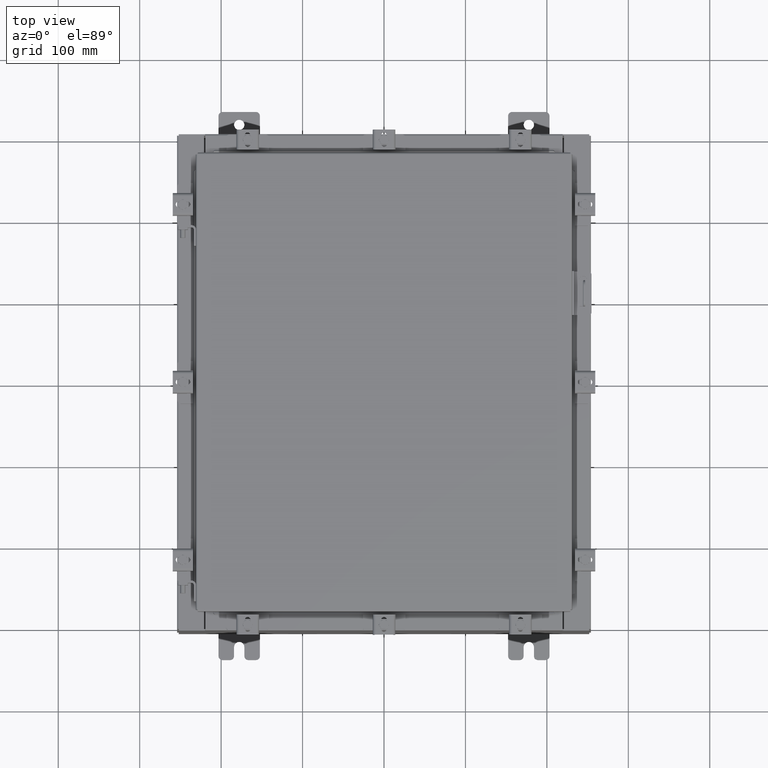
[diagram: clean part render]
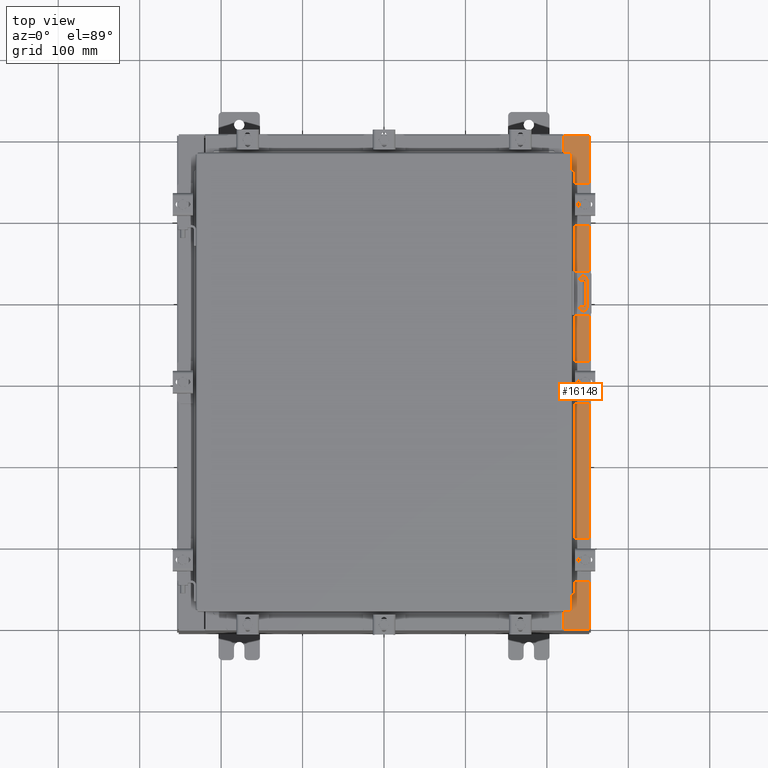
[diagram: same view with one face highlighted and labeled with its STEP entity id]
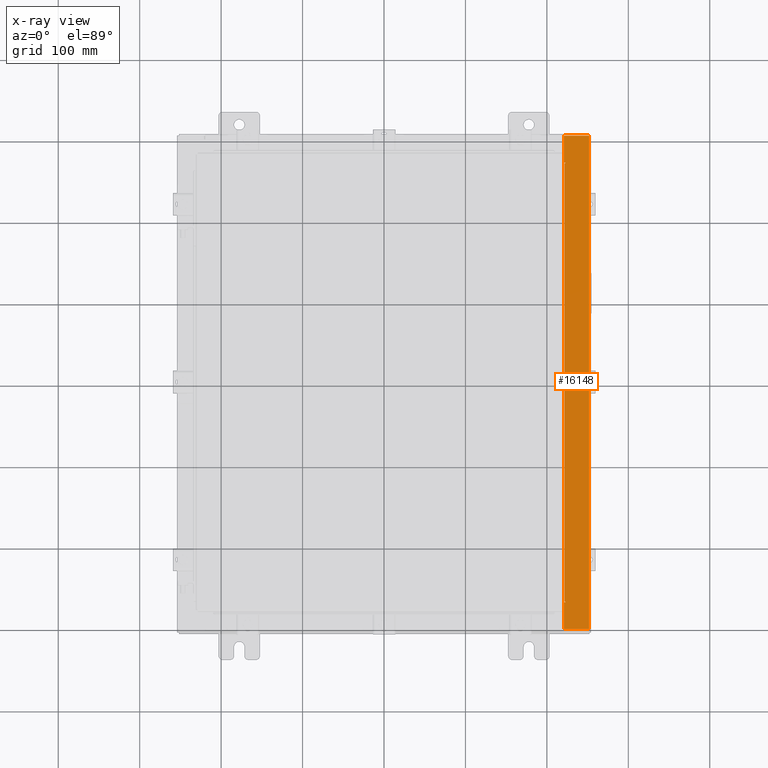
[diagram: x-ray of the same camera — body ghosted, the highlighted face saturated]
A machine part, top view. The second image highlights one B-rep face of the part: STEP entity #16148.
The next image is the same camera in x-ray: the body ghosted, the highlighted face saturated — about 0% of this face is hidden behind the body in this view.
In plain terms, the highlighted planar face has unit normal (-0, 0, -1).
Its self-contained STEP definition (entity closure, byte-faithful):
#91 = ORIENTED_EDGE ( 'NONE', *, *, #11133, .F. ) ;
#1032 = VERTEX_POINT ( 'NONE', #2040 ) ;
#1046 = VERTEX_POINT ( 'NONE', #1402 ) ;
#1148 = CARTESIAN_POINT ( 'NONE',  ( 8.712700000000035400, -10.59375000000000000, 9.925300000000007100 ) ) ;
#1402 = CARTESIAN_POINT ( 'NONE',  ( 8.750050000000037200, 10.63109999999999500, 9.925300000000008900 ) ) ;
#1434 = ORIENTED_EDGE ( 'NONE', *, *, #5772, .T. ) ;
#1917 = EDGE_CURVE ( 'NONE', #1046, #8275, #14359, .T. ) ;
#2040 = CARTESIAN_POINT ( 'NONE',  ( 8.750050000000037200, 10.59374999999999600, 9.925300000000008900 ) ) ;
#2088 = CARTESIAN_POINT ( 'NONE',  ( 8.712700000000035400, -10.59374999999999800, 9.925300000000007100 ) ) ;
#2165 = FACE_OUTER_BOUND ( 'NONE', #14986, .T. ) ;
#2242 = VECTOR ( 'NONE', #3839, 39.37007874015748100 ) ;
#2386 = CARTESIAN_POINT ( 'NONE',  ( 8.712700000000035400, 10.59374999999999600, 9.925300000000007100 ) ) ;
#2564 = VECTOR ( 'NONE', #11117, 39.37007874015748100 ) ;
#2630 = CARTESIAN_POINT ( 'NONE',  ( 8.750050000000037200, -10.59374999999999800, 9.925300000000008900 ) ) ;
#2643 = CIRCLE ( 'NONE', #14039, 0.01867499999999949400 ) ;
#2644 = DIRECTION ( 'NONE',  ( 1.000000000000000000, 0.0000000000000000000, 0.0000000000000000000 ) ) ;
#2800 = VERTEX_POINT ( 'NONE', #11036 ) ;
#2908 = CARTESIAN_POINT ( 'NONE',  ( 8.699700000000035500, 11.92529999999999600, 9.925300000000008900 ) ) ;
#3205 = EDGE_CURVE ( 'NONE', #1032, #1046, #2643, .T. ) ;
#3230 = VERTEX_POINT ( 'NONE', #2630 ) ;
#3464 = CARTESIAN_POINT ( 'NONE',  ( 8.750050000000037200, -10.63109999999999600, 9.925300000000008900 ) ) ;
#3478 = VECTOR ( 'NONE', #10805, 39.37007874015748100 ) ;
#3615 = AXIS2_PLACEMENT_3D ( 'NONE', #7583, #18792, #9235 ) ;
#3839 = DIRECTION ( 'NONE',  ( 1.000000000000000000, 1.633973368572597200E-031, -5.349571789159784600E-015 ) ) ;
#3865 = EDGE_CURVE ( 'NONE', #8806, #8275, #12471, .T. ) ;
#4075 = LINE ( 'NONE', #18718, #12174 ) ;
#4230 = ORIENTED_EDGE ( 'NONE', *, *, #1917, .F. ) ;
#4282 = EDGE_CURVE ( 'NONE', #10797, #8806, #17187, .T. ) ;
#4849 = DIRECTION ( 'NONE',  ( 1.000000000000000000, 0.0000000000000000000, 0.0000000000000000000 ) ) ;
#4941 = LINE ( 'NONE', #10382, #8240 ) ;
#5040 = VERTEX_POINT ( 'NONE', #13028 ) ;
#5195 = ORIENTED_EDGE ( 'NONE', *, *, #14273, .F. ) ;
#5370 = DIRECTION ( 'NONE',  ( 1.000000000000000000, 0.0000000000000000000, 0.0000000000000000000 ) ) ;
#5462 = DIRECTION ( 'NONE',  ( -1.000000000000000000, 0.0000000000000000000, 5.349571789159783800E-015 ) ) ;
#5656 = EDGE_CURVE ( 'NONE', #11680, #1032, #4075, .T. ) ;
#5772 = EDGE_CURVE ( 'NONE', #2800, #7759, #10663, .T. ) ;
#5819 = ORIENTED_EDGE ( 'NONE', *, *, #11796, .F. ) ;
#5898 = LINE ( 'NONE', #11373, #18683 ) ;
#6163 = DIRECTION ( 'NONE',  ( -6.427586101948161900E-031, -1.000000000000000000, 3.438483328337737900E-045 ) ) ;
#6419 = EDGE_CURVE ( 'NONE', #2800, #16064, #5898, .T. ) ;
#6508 = LINE ( 'NONE', #13646, #14518 ) ;
#6769 = DIRECTION ( 'NONE',  ( 5.349571789159783800E-015, 0.0000000000000000000, 1.000000000000000000 ) ) ;
#7041 = CARTESIAN_POINT ( 'NONE',  ( 8.750050000000037200, 10.61242499999999500, 9.925300000000007100 ) ) ;
#7149 = ORIENTED_EDGE ( 'NONE', *, *, #3865, .T. ) ;
#7583 = CARTESIAN_POINT ( 'NONE',  ( 8.750050000000037200, -10.61242499999999800, 9.925300000000007100 ) ) ;
#7693 = ORIENTED_EDGE ( 'NONE', *, *, #3205, .F. ) ;
#7759 = VERTEX_POINT ( 'NONE', #16010 ) ;
#8168 = VECTOR ( 'NONE', #10213, 39.37007874015748100 ) ;
#8240 = VECTOR ( 'NONE', #8745, 39.37007874015748100 ) ;
#8275 = VERTEX_POINT ( 'NONE', #11437 ) ;
#8646 = PLANE ( 'NONE',  #20392 ) ;
#8745 = DIRECTION ( 'NONE',  ( -0.0000000000000000000, -1.000000000000000000, -0.0000000000000000000 ) ) ;
#8806 = VERTEX_POINT ( 'NONE', #2908 ) ;
#9235 = DIRECTION ( 'NONE',  ( 1.000000000000000000, 0.0000000000000000000, 0.0000000000000000000 ) ) ;
#9319 = LINE ( 'NONE', #15071, #2242 ) ;
#9345 = DIRECTION ( 'NONE',  ( -1.000000000000000000, 8.758115402030108600E-047, 5.349571789159784600E-015 ) ) ;
#9429 = CARTESIAN_POINT ( 'NONE',  ( 8.699700000000035500, -5.591807081111829600E-030, 9.925300000000008900 ) ) ;
#9443 = CARTESIAN_POINT ( 'NONE',  ( 8.750050000000037200, 10.63109999999999500, 9.925300000000007100 ) ) ;
#10149 = VECTOR ( 'NONE', #6163, 39.37007874015748100 ) ;
#10192 = EDGE_CURVE ( 'NONE', #3230, #16117, #6508, .T. ) ;
#10213 = DIRECTION ( 'NONE',  ( -6.427586101948161900E-031, -1.000000000000000000, 3.438483328337737900E-045 ) ) ;
#10382 = CARTESIAN_POINT ( 'NONE',  ( 9.912300000000035600, -11.92530000000000000, 9.925300000000001800 ) ) ;
#10663 = LINE ( 'NONE', #9429, #10149 ) ;
#10797 = VERTEX_POINT ( 'NONE', #18985 ) ;
#10805 = DIRECTION ( 'NONE',  ( -0.0000000000000000000, 1.000000000000000000, -0.0000000000000000000 ) ) ;
#11036 = CARTESIAN_POINT ( 'NONE',  ( 8.699700000000035500, -10.63109999999999600, 9.925300000000008900 ) ) ;
#11117 = DIRECTION ( 'NONE',  ( -1.000000000000000000, 4.340572780399910900E-014, 0.0000000000000000000 ) ) ;
#11133 = EDGE_CURVE ( 'NONE', #10797, #5040, #4941, .T. ) ;
#11373 = CARTESIAN_POINT ( 'NONE',  ( 8.699700000000035500, -10.63109999999999600, 9.925300000000007100 ) ) ;
#11437 = CARTESIAN_POINT ( 'NONE',  ( 8.699700000000035500, 10.63109999999999600, 9.925300000000008900 ) ) ;
#11680 = VERTEX_POINT ( 'NONE', #2386 ) ;
#11796 = EDGE_CURVE ( 'NONE', #16064, #3230, #16997, .T. ) ;
#11896 = CARTESIAN_POINT ( 'NONE',  ( 5.335691853495948400E-014, 0.0000000000000000000, 9.925300000000055100 ) ) ;
#12174 = VECTOR ( 'NONE', #2644, 39.37007874015748100 ) ;
#12453 = VECTOR ( 'NONE', #9345, 39.37007874015748100 ) ;
#12471 = LINE ( 'NONE', #18223, #8168 ) ;
#12578 = CARTESIAN_POINT ( 'NONE',  ( 5.335691853495948400E-014, 11.92529999999999800, 9.925300000000055100 ) ) ;
#13028 = CARTESIAN_POINT ( 'NONE',  ( 9.912300000000035600, -11.92530000000000000, 9.925300000000001800 ) ) ;
#13646 = CARTESIAN_POINT ( 'NONE',  ( 8.750050000000037200, -10.59374999999999800, 9.925300000000007100 ) ) ;
#13808 = ORIENTED_EDGE ( 'NONE', *, *, #10192, .F. ) ;
#14039 = AXIS2_PLACEMENT_3D ( 'NONE', #7041, #6769, #5370 ) ;
#14273 = EDGE_CURVE ( 'NONE', #16117, #11680, #15310, .T. ) ;
#14359 = LINE ( 'NONE', #9443, #2564 ) ;
#14518 = VECTOR ( 'NONE', #18404, 39.37007874015748100 ) ;
#14615 = EDGE_CURVE ( 'NONE', #7759, #5040, #9319, .T. ) ;
#14986 = EDGE_LOOP ( 'NONE', ( #16378, #1434, #19355, #91, #15238, #7149, #4230, #7693, #20302, #5195, #13808, #5819 ) ) ;
#15060 = DIRECTION ( 'NONE',  ( -5.349571789159783800E-015, 0.0000000000000000000, -1.000000000000000000 ) ) ;
#15071 = CARTESIAN_POINT ( 'NONE',  ( 5.335691853495948400E-014, -11.92530000000000000, 9.925300000000055100 ) ) ;
#15238 = ORIENTED_EDGE ( 'NONE', *, *, #4282, .T. ) ;
#15310 = LINE ( 'NONE', #1148, #3478 ) ;
#16010 = CARTESIAN_POINT ( 'NONE',  ( 8.699700000000035500, -11.92530000000000000, 9.925300000000008900 ) ) ;
#16064 = VERTEX_POINT ( 'NONE', #3464 ) ;
#16117 = VERTEX_POINT ( 'NONE', #2088 ) ;
#16148 = ADVANCED_FACE ( 'NONE', ( #2165 ), #8646, .F. ) ;
#16378 = ORIENTED_EDGE ( 'NONE', *, *, #6419, .F. ) ;
#16997 = CIRCLE ( 'NONE', #3615, 0.01867499999999949400 ) ;
#17187 = LINE ( 'NONE', #12578, #12453 ) ;
#18223 = CARTESIAN_POINT ( 'NONE',  ( 8.699700000000035500, -5.591807081111829600E-030, 9.925300000000008900 ) ) ;
#18404 = DIRECTION ( 'NONE',  ( -1.000000000000000000, 0.0000000000000000000, 0.0000000000000000000 ) ) ;
#18683 = VECTOR ( 'NONE', #4849, 39.37007874015748100 ) ;
#18718 = CARTESIAN_POINT ( 'NONE',  ( 8.712700000000035400, 10.59374999999999600, 9.925300000000007100 ) ) ;
#18792 = DIRECTION ( 'NONE',  ( 5.349571789159783800E-015, 0.0000000000000000000, 1.000000000000000000 ) ) ;
#18985 = CARTESIAN_POINT ( 'NONE',  ( 9.912300000000035600, 11.92529999999999800, 9.925300000000001800 ) ) ;
#19355 = ORIENTED_EDGE ( 'NONE', *, *, #14615, .T. ) ;
#20302 = ORIENTED_EDGE ( 'NONE', *, *, #5656, .F. ) ;
#20392 = AXIS2_PLACEMENT_3D ( 'NONE', #11896, #15060, #5462 ) ;